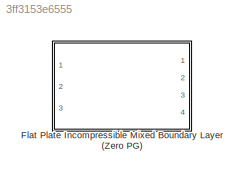
MODEL slx_3ff3153e6555
KIND library
CONFIG AbsTol = auto
CONFIG FixedStep = auto
CONFIG MaxStep = auto
CONFIG MinStep = auto
CONFIG RelTol = 1e-3
CONFIG SampleTimeConstraint = Unconstrained
CONFIG Solver = ode45
CONFIG SolverMode = Auto
CONFIG SolverName = ode45
CONFIG StartTime = 0.0
CONFIG StopTime = 10.0
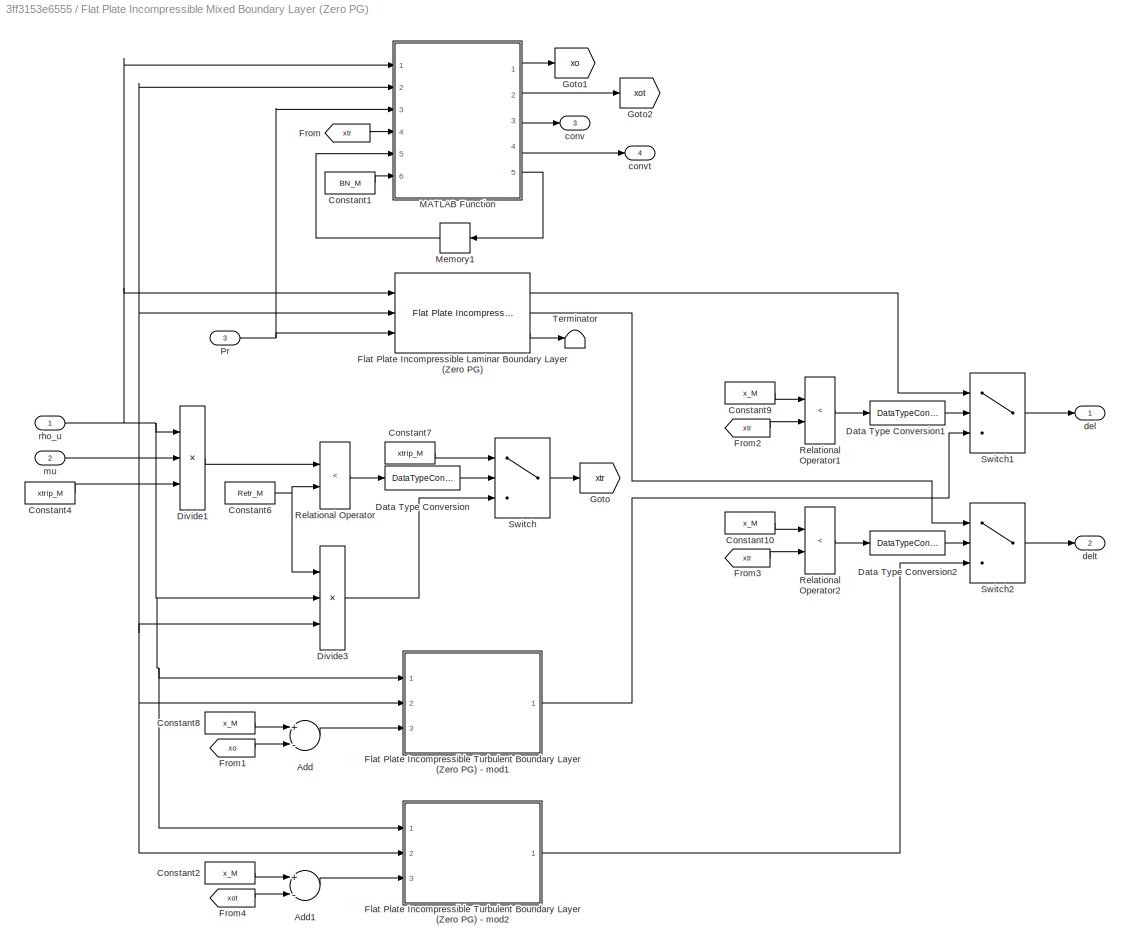
BLOCK [SubSystem] Flat Plate Incompressible Mixed Boundary Layer (Zero PG)
  Ports = [3, 4]
  RequestExecContextInheritance = off
BLOCK [Sum] Flat Plate Incompressible Mixed Boundary Layer (Zero PG)/Add
  InputSameDT = off
  Inputs = +-
  OutDataTypeStr = Inherit: Inherit via internal rule
  Ports = [2, 1]
  SaturateOnIntegerOverflow = off
BLOCK [Sum] Flat Plate Incompressible Mixed Boundary Layer (Zero PG)/Add1
  InputSameDT = off
  Inputs = +-
  OutDataTypeStr = Inherit: Inherit via internal rule
  Ports = [2, 1]
  SaturateOnIntegerOverflow = off
BLOCK [Constant] Flat Plate Incompressible Mixed Boundary Layer (Zero PG)/Constant1
  Value = BN_M
BLOCK [Constant] Flat Plate Incompressible Mixed Boundary Layer (Zero PG)/Constant10
  Value = x_M
BLOCK [Constant] Flat Plate Incompressible Mixed Boundary Layer (Zero PG)/Constant2
  Value = x_M
BLOCK [Constant] Flat Plate Incompressible Mixed Boundary Layer (Zero PG)/Constant4
  Value = xtrip_M
BLOCK [Constant] Flat Plate Incompressible Mixed Boundary Layer (Zero PG)/Constant6
  Value = Retr_M
BLOCK [Constant] Flat Plate Incompressible Mixed Boundary Layer (Zero PG)/Constant7
  Value = xtrip_M
BLOCK [Constant] Flat Plate Incompressible Mixed Boundary Layer (Zero PG)/Constant8
  Value = x_M
BLOCK [Constant] Flat Plate Incompressible Mixed Boundary Layer (Zero PG)/Constant9
  Value = x_M
BLOCK [DataTypeConversion] Flat Plate Incompressible Mixed Boundary Layer (Zero PG)/Data Type Conversion
  OutDataTypeStr = double
  RndMeth = Floor
  SaturateOnIntegerOverflow = off
BLOCK [DataTypeConversion] Flat Plate Incompressible Mixed Boundary Layer (Zero PG)/Data Type Conversion1
  OutDataTypeStr = double
  RndMeth = Floor
  SaturateOnIntegerOverflow = off
BLOCK [DataTypeConversion] Flat Plate Incompressible Mixed Boundary Layer (Zero PG)/Data Type Conversion2
  OutDataTypeStr = double
  RndMeth = Floor
  SaturateOnIntegerOverflow = off
BLOCK [Product] Flat Plate Incompressible Mixed Boundary Layer (Zero PG)/Divide1
  InputSameDT = off
  Inputs = */*
  OutDataTypeStr = Inherit: Inherit via internal rule
  Ports = [3, 1]
  RndMeth = Floor
  SaturateOnIntegerOverflow = off
BLOCK [Product] Flat Plate Incompressible Mixed Boundary Layer (Zero PG)/Divide3
  InputSameDT = off
  Inputs = */*
  OutDataTypeStr = Inherit: Inherit via internal rule
  Ports = [3, 1]
  RndMeth = Floor
  SaturateOnIntegerOverflow = off
BLOCK [Reference] Flat Plate Incompressible Mixed Boundary Layer (Zero PG)/Flat Plate Incompressible Laminar Boundary Layer (Zero PG)  REF=lib_Convection_LamIncompFlatPlateBL/Flat Plate Incompressible 
Laminar Boundary Layer
(Zero PG)
  Ports = [3, 3]
  Retr_M = Retr_M
  SourceBlock = lib_Convection_LamIncompFlatPlateBL/Flat Plate Incompressible \nLaminar Boundary Layer\n(Zero PG)
  SourceType = TSAT: Flat Plate Incompressible Laminar Boundary Layer (Zero PG)
  x_M = x_M
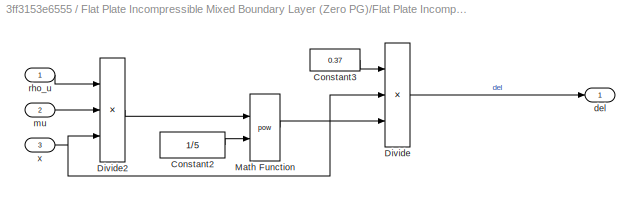
BLOCK [SubSystem] Flat Plate Incompressible Mixed Boundary Layer (Zero PG)/Flat Plate Incompressible Turbulent Boundary Layer (Zero PG) - mod1
  Ports = [3, 1]
  RequestExecContextInheritance = off
BLOCK [Constant] Flat Plate Incompressible Mixed Boundary Layer (Zero PG)/Flat Plate Incompressible Turbulent Boundary Layer (Zero PG) - mod1/Constant2
  Value = 1/5
BLOCK [Constant] Flat Plate Incompressible Mixed Boundary Layer (Zero PG)/Flat Plate Incompressible Turbulent Boundary Layer (Zero PG) - mod1/Constant3
  Value = 0.37
BLOCK [Product] Flat Plate Incompressible Mixed Boundary Layer (Zero PG)/Flat Plate Incompressible Turbulent Boundary Layer (Zero PG) - mod1/Divide
  InputSameDT = off
  Inputs = **/
  OutDataTypeStr = Inherit: Inherit via internal rule
  Ports = [3, 1]
  RndMeth = Floor
  SaturateOnIntegerOverflow = off
BLOCK [Product] Flat Plate Incompressible Mixed Boundary Layer (Zero PG)/Flat Plate Incompressible Turbulent Boundary Layer (Zero PG) - mod1/Divide2
  InputSameDT = off
  Inputs = */*
  OutDataTypeStr = Inherit: Inherit via internal rule
  Ports = [3, 1]
  RndMeth = Floor
  SaturateOnIntegerOverflow = off
BLOCK [Math] Flat Plate Incompressible Mixed Boundary Layer (Zero PG)/Flat Plate Incompressible Turbulent Boundary Layer (Zero PG) - mod1/Math Function
  Operator = pow
  Ports = [2, 1]
BLOCK [Outport] Flat Plate Incompressible Mixed Boundary Layer (Zero PG)/Flat Plate Incompressible Turbulent Boundary Layer (Zero PG) - mod1/del
  IconDisplay = Port number
BLOCK [Inport] Flat Plate Incompressible Mixed Boundary Layer (Zero PG)/Flat Plate Incompressible Turbulent Boundary Layer (Zero PG) - mod1/mu
  IconDisplay = Port number
  Port = 2
BLOCK [Inport] Flat Plate Incompressible Mixed Boundary Layer (Zero PG)/Flat Plate Incompressible Turbulent Boundary Layer (Zero PG) - mod1/rho_u
  IconDisplay = Port number
BLOCK [Inport] Flat Plate Incompressible Mixed Boundary Layer (Zero PG)/Flat Plate Incompressible Turbulent Boundary Layer (Zero PG) - mod1/x
  IconDisplay = Port number
  Port = 3
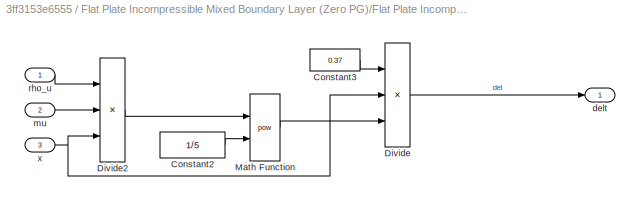
BLOCK [SubSystem] Flat Plate Incompressible Mixed Boundary Layer (Zero PG)/Flat Plate Incompressible Turbulent Boundary Layer (Zero PG) - mod2
  Ports = [3, 1]
  RequestExecContextInheritance = off
BLOCK [Constant] Flat Plate Incompressible Mixed Boundary Layer (Zero PG)/Flat Plate Incompressible Turbulent Boundary Layer (Zero PG) - mod2/Constant2
  Value = 1/5
BLOCK [Constant] Flat Plate Incompressible Mixed Boundary Layer (Zero PG)/Flat Plate Incompressible Turbulent Boundary Layer (Zero PG) - mod2/Constant3
  Value = 0.37
BLOCK [Product] Flat Plate Incompressible Mixed Boundary Layer (Zero PG)/Flat Plate Incompressible Turbulent Boundary Layer (Zero PG) - mod2/Divide
  InputSameDT = off
  Inputs = **/
  OutDataTypeStr = Inherit: Inherit via internal rule
  Ports = [3, 1]
  RndMeth = Floor
  SaturateOnIntegerOverflow = off
BLOCK [Product] Flat Plate Incompressible Mixed Boundary Layer (Zero PG)/Flat Plate Incompressible Turbulent Boundary Layer (Zero PG) - mod2/Divide2
  InputSameDT = off
  Inputs = */*
  OutDataTypeStr = Inherit: Inherit via internal rule
  Ports = [3, 1]
  RndMeth = Floor
  SaturateOnIntegerOverflow = off
BLOCK [Math] Flat Plate Incompressible Mixed Boundary Layer (Zero PG)/Flat Plate Incompressible Turbulent Boundary Layer (Zero PG) - mod2/Math Function
  Operator = pow
  Ports = [2, 1]
BLOCK [Outport] Flat Plate Incompressible Mixed Boundary Layer (Zero PG)/Flat Plate Incompressible Turbulent Boundary Layer (Zero PG) - mod2/delt
  IconDisplay = Port number
BLOCK [Inport] Flat Plate Incompressible Mixed Boundary Layer (Zero PG)/Flat Plate Incompressible Turbulent Boundary Layer (Zero PG) - mod2/mu
  IconDisplay = Port number
  Port = 2
BLOCK [Inport] Flat Plate Incompressible Mixed Boundary Layer (Zero PG)/Flat Plate Incompressible Turbulent Boundary Layer (Zero PG) - mod2/rho_u
  IconDisplay = Port number
BLOCK [Inport] Flat Plate Incompressible Mixed Boundary Layer (Zero PG)/Flat Plate Incompressible Turbulent Boundary Layer (Zero PG) - mod2/x
  IconDisplay = Port number
  Port = 3
BLOCK [From] Flat Plate Incompressible Mixed Boundary Layer (Zero PG)/From
  GotoTag = xtr
BLOCK [From] Flat Plate Incompressible Mixed Boundary Layer (Zero PG)/From1
  GotoTag = xo
BLOCK [From] Flat Plate Incompressible Mixed Boundary Layer (Zero PG)/From2
  GotoTag = xtr
BLOCK [From] Flat Plate Incompressible Mixed Boundary Layer (Zero PG)/From3
  GotoTag = xtr
BLOCK [From] Flat Plate Incompressible Mixed Boundary Layer (Zero PG)/From4
  GotoTag = xot
BLOCK [Goto] Flat Plate Incompressible Mixed Boundary Layer (Zero PG)/Goto
  GotoTag = xtr
BLOCK [Goto] Flat Plate Incompressible Mixed Boundary Layer (Zero PG)/Goto1
  GotoTag = xo
BLOCK [Goto] Flat Plate Incompressible Mixed Boundary Layer (Zero PG)/Goto2
  GotoTag = xot
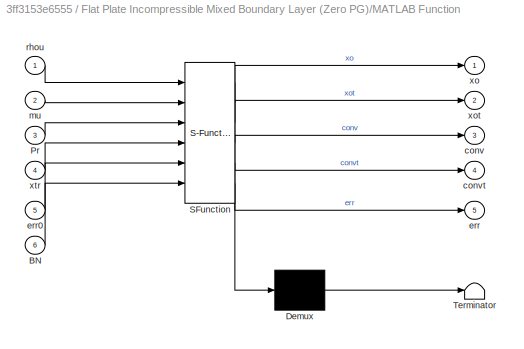
BLOCK [SubSystem] Flat Plate Incompressible Mixed Boundary Layer (Zero PG)/MATLAB Function
  ErrorFcn = Stateflow.Translate.translate
  PermitHierarchicalResolution = ExplicitOnly
  Ports = [6, 5]
  RequestExecContextInheritance = off
  SFBlockType = MATLAB Function
  TreatAsAtomicUnit = on
BLOCK [Demux] Flat Plate Incompressible Mixed Boundary Layer (Zero PG)/MATLAB Function/ Demux 
  Outputs = 1
  Ports = [1, 1]
BLOCK [S-Function] Flat Plate Incompressible Mixed Boundary Layer (Zero PG)/MATLAB Function/ SFunction 
  EnableBusSupport = on
  FunctionName = sf_sfun
  PortCounts = [6 6]
  Ports = [6, 6]
  Tag = Stateflow S-Function lib_Convection_MixedIncompFlatPlateBL 2
BLOCK [Terminator] Flat Plate Incompressible Mixed Boundary Layer (Zero PG)/MATLAB Function/ Terminator 
BLOCK [Inport] Flat Plate Incompressible Mixed Boundary Layer (Zero PG)/MATLAB Function/BN
  IconDisplay = Port number
  Port = 6
BLOCK [Inport] Flat Plate Incompressible Mixed Boundary Layer (Zero PG)/MATLAB Function/Pr
  IconDisplay = Port number
  Port = 3
BLOCK [Outport] Flat Plate Incompressible Mixed Boundary Layer (Zero PG)/MATLAB Function/conv
  IconDisplay = Port number
  Port = 3
BLOCK [Outport] Flat Plate Incompressible Mixed Boundary Layer (Zero PG)/MATLAB Function/convt
  IconDisplay = Port number
  Port = 4
BLOCK [Outport] Flat Plate Incompressible Mixed Boundary Layer (Zero PG)/MATLAB Function/err
  IconDisplay = Port number
  Port = 5
BLOCK [Inport] Flat Plate Incompressible Mixed Boundary Layer (Zero PG)/MATLAB Function/err0
  IconDisplay = Port number
  Port = 5
BLOCK [Inport] Flat Plate Incompressible Mixed Boundary Layer (Zero PG)/MATLAB Function/mu
  IconDisplay = Port number
  Port = 2
BLOCK [Inport] Flat Plate Incompressible Mixed Boundary Layer (Zero PG)/MATLAB Function/rhou
  IconDisplay = Port number
BLOCK [Outport] Flat Plate Incompressible Mixed Boundary Layer (Zero PG)/MATLAB Function/xo
  IconDisplay = Port number
BLOCK [Outport] Flat Plate Incompressible Mixed Boundary Layer (Zero PG)/MATLAB Function/xot
  IconDisplay = Port number
  Port = 2
BLOCK [Inport] Flat Plate Incompressible Mixed Boundary Layer (Zero PG)/MATLAB Function/xtr
  IconDisplay = Port number
  Port = 4
BLOCK [Memory] Flat Plate Incompressible Mixed Boundary Layer (Zero PG)/Memory1
  X0 = zeros(1,9)
BLOCK [Inport] Flat Plate Incompressible Mixed Boundary Layer (Zero PG)/Pr
  IconDisplay = Port number
  Port = 3
BLOCK [RelationalOperator] Flat Plate Incompressible Mixed Boundary Layer (Zero PG)/Relational Operator
  InputSameDT = off
  Operator = <
  OutDataTypeStr = boolean
  Ports = [2, 1]
BLOCK [RelationalOperator] Flat Plate Incompressible Mixed Boundary Layer (Zero PG)/Relational Operator1
  InputSameDT = off
  Operator = <
  OutDataTypeStr = boolean
  Ports = [2, 1]
BLOCK [RelationalOperator] Flat Plate Incompressible Mixed Boundary Layer (Zero PG)/Relational Operator2
  InputSameDT = off
  Operator = <
  OutDataTypeStr = boolean
  Ports = [2, 1]
BLOCK [Switch] Flat Plate Incompressible Mixed Boundary Layer (Zero PG)/Switch
  Criteria = u2 > Threshold
  InputSameDT = off
  SaturateOnIntegerOverflow = off
BLOCK [Switch] Flat Plate Incompressible Mixed Boundary Layer (Zero PG)/Switch1
  Criteria = u2 > Threshold
  InputSameDT = off
  SaturateOnIntegerOverflow = off
BLOCK [Switch] Flat Plate Incompressible Mixed Boundary Layer (Zero PG)/Switch2
  Criteria = u2 > Threshold
  InputSameDT = off
  SaturateOnIntegerOverflow = off
BLOCK [Terminator] Flat Plate Incompressible Mixed Boundary Layer (Zero PG)/Terminator
BLOCK [Outport] Flat Plate Incompressible Mixed Boundary Layer (Zero PG)/conv
  IconDisplay = Port number
  Port = 3
BLOCK [Outport] Flat Plate Incompressible Mixed Boundary Layer (Zero PG)/convt
  IconDisplay = Port number
  Port = 4
BLOCK [Outport] Flat Plate Incompressible Mixed Boundary Layer (Zero PG)/del
  IconDisplay = Port number
BLOCK [Outport] Flat Plate Incompressible Mixed Boundary Layer (Zero PG)/delt
  IconDisplay = Port number
  Port = 2
BLOCK [Inport] Flat Plate Incompressible Mixed Boundary Layer (Zero PG)/mu
  IconDisplay = Port number
  Port = 2
BLOCK [Inport] Flat Plate Incompressible Mixed Boundary Layer (Zero PG)/rho_u
  IconDisplay = Port number
LINE Flat Plate Incompressible Mixed Boundary Layer (Zero PG)/Add1:1 -> Flat Plate Incompressible Mixed Boundary Layer (Zero PG)/Flat Plate Incompressible Turbulent Boundary Layer (Zero PG) - mod2:3
LINE Flat Plate Incompressible Mixed Boundary Layer (Zero PG)/Add:1 -> Flat Plate Incompressible Mixed Boundary Layer (Zero PG)/Flat Plate Incompressible Turbulent Boundary Layer (Zero PG) - mod1:3
LINE Flat Plate Incompressible Mixed Boundary Layer (Zero PG)/Constant10:1 -> Flat Plate Incompressible Mixed Boundary Layer (Zero PG)/Relational Operator2:1
LINE Flat Plate Incompressible Mixed Boundary Layer (Zero PG)/Constant1:1 -> Flat Plate Incompressible Mixed Boundary Layer (Zero PG)/MATLAB Function:6
LINE Flat Plate Incompressible Mixed Boundary Layer (Zero PG)/Constant2:1 -> Flat Plate Incompressible Mixed Boundary Layer (Zero PG)/Add1:1
LINE Flat Plate Incompressible Mixed Boundary Layer (Zero PG)/Constant4:1 -> Flat Plate Incompressible Mixed Boundary Layer (Zero PG)/Divide1:3
NET Flat Plate Incompressible Mixed Boundary Layer (Zero PG)/Constant6:1 -> Flat Plate Incompressible Mixed Boundary Layer (Zero PG)/Divide3:1, Flat Plate Incompressible Mixed Boundary Layer (Zero PG)/Relational Operator:2
LINE Flat Plate Incompressible Mixed Boundary Layer (Zero PG)/Constant7:1 -> Flat Plate Incompressible Mixed Boundary Layer (Zero PG)/Switch:1
LINE Flat Plate Incompressible Mixed Boundary Layer (Zero PG)/Constant8:1 -> Flat Plate Incompressible Mixed Boundary Layer (Zero PG)/Add:1
LINE Flat Plate Incompressible Mixed Boundary Layer (Zero PG)/Constant9:1 -> Flat Plate Incompressible Mixed Boundary Layer (Zero PG)/Relational Operator1:1
LINE Flat Plate Incompressible Mixed Boundary Layer (Zero PG)/Data Type Conversion1:1 -> Flat Plate Incompressible Mixed Boundary Layer (Zero PG)/Switch1:2
LINE Flat Plate Incompressible Mixed Boundary Layer (Zero PG)/Data Type Conversion2:1 -> Flat Plate Incompressible Mixed Boundary Layer (Zero PG)/Switch2:2
LINE Flat Plate Incompressible Mixed Boundary Layer (Zero PG)/Data Type Conversion:1 -> Flat Plate Incompressible Mixed Boundary Layer (Zero PG)/Switch:2
LINE Flat Plate Incompressible Mixed Boundary Layer (Zero PG)/Divide1:1 -> Flat Plate Incompressible Mixed Boundary Layer (Zero PG)/Relational Operator:1
LINE Flat Plate Incompressible Mixed Boundary Layer (Zero PG)/Divide3:1 -> Flat Plate Incompressible Mixed Boundary Layer (Zero PG)/Switch:3
LINE Flat Plate Incompressible Mixed Boundary Layer (Zero PG)/Flat Plate Incompressible Laminar Boundary Layer (Zero PG):1 -> Flat Plate Incompressible Mixed Boundary Layer (Zero PG)/Switch1:1
LINE Flat Plate Incompressible Mixed Boundary Layer (Zero PG)/Flat Plate Incompressible Laminar Boundary Layer (Zero PG):2 -> Flat Plate Incompressible Mixed Boundary Layer (Zero PG)/Switch2:1
LINE Flat Plate Incompressible Mixed Boundary Layer (Zero PG)/Flat Plate Incompressible Laminar Boundary Layer (Zero PG):3 -> Flat Plate Incompressible Mixed Boundary Layer (Zero PG)/Terminator:1
LINE Flat Plate Incompressible Mixed Boundary Layer (Zero PG)/Flat Plate Incompressible Turbulent Boundary Layer (Zero PG) - mod1/Constant2:1 -> Flat Plate Incompressible Mixed Boundary Layer (Zero PG)/Flat Plate Incompressible Turbulent Boundary Layer (Zero PG) - mod1/Math Function:2
LINE Flat Plate Incompressible Mixed Boundary Layer (Zero PG)/Flat Plate Incompressible Turbulent Boundary Layer (Zero PG) - mod1/Constant3:1 -> Flat Plate Incompressible Mixed Boundary Layer (Zero PG)/Flat Plate Incompressible Turbulent Boundary Layer (Zero PG) - mod1/Divide:1
LINE Flat Plate Incompressible Mixed Boundary Layer (Zero PG)/Flat Plate Incompressible Turbulent Boundary Layer (Zero PG) - mod1/Divide2:1 -> Flat Plate Incompressible Mixed Boundary Layer (Zero PG)/Flat Plate Incompressible Turbulent Boundary Layer (Zero PG) - mod1/Math Function:1
LINE Flat Plate Incompressible Mixed Boundary Layer (Zero PG)/Flat Plate Incompressible Turbulent Boundary Layer (Zero PG) - mod1/Divide:1 -> Flat Plate Incompressible Mixed Boundary Layer (Zero PG)/Flat Plate Incompressible Turbulent Boundary Layer (Zero PG) - mod1/del:1
LINE Flat Plate Incompressible Mixed Boundary Layer (Zero PG)/Flat Plate Incompressible Turbulent Boundary Layer (Zero PG) - mod1/Math Function:1 -> Flat Plate Incompressible Mixed Boundary Layer (Zero PG)/Flat Plate Incompressible Turbulent Boundary Layer (Zero PG) - mod1/Divide:3
LINE Flat Plate Incompressible Mixed Boundary Layer (Zero PG)/Flat Plate Incompressible Turbulent Boundary Layer (Zero PG) - mod1/mu:1 -> Flat Plate Incompressible Mixed Boundary Layer (Zero PG)/Flat Plate Incompressible Turbulent Boundary Layer (Zero PG) - mod1/Divide2:2
LINE Flat Plate Incompressible Mixed Boundary Layer (Zero PG)/Flat Plate Incompressible Turbulent Boundary Layer (Zero PG) - mod1/rho_u:1 -> Flat Plate Incompressible Mixed Boundary Layer (Zero PG)/Flat Plate Incompressible Turbulent Boundary Layer (Zero PG) - mod1/Divide2:1
NET Flat Plate Incompressible Mixed Boundary Layer (Zero PG)/Flat Plate Incompressible Turbulent Boundary Layer (Zero PG) - mod1/x:1 -> Flat Plate Incompressible Mixed Boundary Layer (Zero PG)/Flat Plate Incompressible Turbulent Boundary Layer (Zero PG) - mod1/Divide2:3, Flat Plate Incompressible Mixed Boundary Layer (Zero PG)/Flat Plate Incompressible Turbulent Boundary Layer (Zero PG) - mod1/Divide:2
LINE Flat Plate Incompressible Mixed Boundary Layer (Zero PG)/Flat Plate Incompressible Turbulent Boundary Layer (Zero PG) - mod1:1 -> Flat Plate Incompressible Mixed Boundary Layer (Zero PG)/Switch1:3
LINE Flat Plate Incompressible Mixed Boundary Layer (Zero PG)/Flat Plate Incompressible Turbulent Boundary Layer (Zero PG) - mod2/Constant2:1 -> Flat Plate Incompressible Mixed Boundary Layer (Zero PG)/Flat Plate Incompressible Turbulent Boundary Layer (Zero PG) - mod2/Math Function:2
LINE Flat Plate Incompressible Mixed Boundary Layer (Zero PG)/Flat Plate Incompressible Turbulent Boundary Layer (Zero PG) - mod2/Constant3:1 -> Flat Plate Incompressible Mixed Boundary Layer (Zero PG)/Flat Plate Incompressible Turbulent Boundary Layer (Zero PG) - mod2/Divide:1
LINE Flat Plate Incompressible Mixed Boundary Layer (Zero PG)/Flat Plate Incompressible Turbulent Boundary Layer (Zero PG) - mod2/Divide2:1 -> Flat Plate Incompressible Mixed Boundary Layer (Zero PG)/Flat Plate Incompressible Turbulent Boundary Layer (Zero PG) - mod2/Math Function:1
LINE Flat Plate Incompressible Mixed Boundary Layer (Zero PG)/Flat Plate Incompressible Turbulent Boundary Layer (Zero PG) - mod2/Divide:1 -> Flat Plate Incompressible Mixed Boundary Layer (Zero PG)/Flat Plate Incompressible Turbulent Boundary Layer (Zero PG) - mod2/delt:1
LINE Flat Plate Incompressible Mixed Boundary Layer (Zero PG)/Flat Plate Incompressible Turbulent Boundary Layer (Zero PG) - mod2/Math Function:1 -> Flat Plate Incompressible Mixed Boundary Layer (Zero PG)/Flat Plate Incompressible Turbulent Boundary Layer (Zero PG) - mod2/Divide:3
LINE Flat Plate Incompressible Mixed Boundary Layer (Zero PG)/Flat Plate Incompressible Turbulent Boundary Layer (Zero PG) - mod2/mu:1 -> Flat Plate Incompressible Mixed Boundary Layer (Zero PG)/Flat Plate Incompressible Turbulent Boundary Layer (Zero PG) - mod2/Divide2:2
LINE Flat Plate Incompressible Mixed Boundary Layer (Zero PG)/Flat Plate Incompressible Turbulent Boundary Layer (Zero PG) - mod2/rho_u:1 -> Flat Plate Incompressible Mixed Boundary Layer (Zero PG)/Flat Plate Incompressible Turbulent Boundary Layer (Zero PG) - mod2/Divide2:1
NET Flat Plate Incompressible Mixed Boundary Layer (Zero PG)/Flat Plate Incompressible Turbulent Boundary Layer (Zero PG) - mod2/x:1 -> Flat Plate Incompressible Mixed Boundary Layer (Zero PG)/Flat Plate Incompressible Turbulent Boundary Layer (Zero PG) - mod2/Divide2:3, Flat Plate Incompressible Mixed Boundary Layer (Zero PG)/Flat Plate Incompressible Turbulent Boundary Layer (Zero PG) - mod2/Divide:2
LINE Flat Plate Incompressible Mixed Boundary Layer (Zero PG)/Flat Plate Incompressible Turbulent Boundary Layer (Zero PG) - mod2:1 -> Flat Plate Incompressible Mixed Boundary Layer (Zero PG)/Switch2:3
LINE Flat Plate Incompressible Mixed Boundary Layer (Zero PG)/From1:1 -> Flat Plate Incompressible Mixed Boundary Layer (Zero PG)/Add:2
LINE Flat Plate Incompressible Mixed Boundary Layer (Zero PG)/From2:1 -> Flat Plate Incompressible Mixed Boundary Layer (Zero PG)/Relational Operator1:2
LINE Flat Plate Incompressible Mixed Boundary Layer (Zero PG)/From3:1 -> Flat Plate Incompressible Mixed Boundary Layer (Zero PG)/Relational Operator2:2
LINE Flat Plate Incompressible Mixed Boundary Layer (Zero PG)/From4:1 -> Flat Plate Incompressible Mixed Boundary Layer (Zero PG)/Add1:2
LINE Flat Plate Incompressible Mixed Boundary Layer (Zero PG)/From:1 -> Flat Plate Incompressible Mixed Boundary Layer (Zero PG)/MATLAB Function:4
LINE Flat Plate Incompressible Mixed Boundary Layer (Zero PG)/MATLAB Function:1 -> Flat Plate Incompressible Mixed Boundary Layer (Zero PG)/Goto1:1
LINE Flat Plate Incompressible Mixed Boundary Layer (Zero PG)/MATLAB Function:2 -> Flat Plate Incompressible Mixed Boundary Layer (Zero PG)/Goto2:1
LINE Flat Plate Incompressible Mixed Boundary Layer (Zero PG)/MATLAB Function:3 -> Flat Plate Incompressible Mixed Boundary Layer (Zero PG)/conv:1
LINE Flat Plate Incompressible Mixed Boundary Layer (Zero PG)/MATLAB Function:4 -> Flat Plate Incompressible Mixed Boundary Layer (Zero PG)/convt:1
LINE Flat Plate Incompressible Mixed Boundary Layer (Zero PG)/MATLAB Function:5 -> Flat Plate Incompressible Mixed Boundary Layer (Zero PG)/Memory1:1
LINE Flat Plate Incompressible Mixed Boundary Layer (Zero PG)/Memory1:1 -> Flat Plate Incompressible Mixed Boundary Layer (Zero PG)/MATLAB Function:5
NET Flat Plate Incompressible Mixed Boundary Layer (Zero PG)/Pr:1 -> Flat Plate Incompressible Mixed Boundary Layer (Zero PG)/Flat Plate Incompressible Laminar Boundary Layer (Zero PG):3, Flat Plate Incompressible Mixed Boundary Layer (Zero PG)/MATLAB Function:3
LINE Flat Plate Incompressible Mixed Boundary Layer (Zero PG)/Relational Operator1:1 -> Flat Plate Incompressible Mixed Boundary Layer (Zero PG)/Data Type Conversion1:1
LINE Flat Plate Incompressible Mixed Boundary Layer (Zero PG)/Relational Operator2:1 -> Flat Plate Incompressible Mixed Boundary Layer (Zero PG)/Data Type Conversion2:1
LINE Flat Plate Incompressible Mixed Boundary Layer (Zero PG)/Relational Operator:1 -> Flat Plate Incompressible Mixed Boundary Layer (Zero PG)/Data Type Conversion:1
LINE Flat Plate Incompressible Mixed Boundary Layer (Zero PG)/Switch1:1 -> Flat Plate Incompressible Mixed Boundary Layer (Zero PG)/del:1
LINE Flat Plate Incompressible Mixed Boundary Layer (Zero PG)/Switch2:1 -> Flat Plate Incompressible Mixed Boundary Layer (Zero PG)/delt:1
LINE Flat Plate Incompressible Mixed Boundary Layer (Zero PG)/Switch:1 -> Flat Plate Incompressible Mixed Boundary Layer (Zero PG)/Goto:1
NET Flat Plate Incompressible Mixed Boundary Layer (Zero PG)/mu:1 -> Flat Plate Incompressible Mixed Boundary Layer (Zero PG)/Divide1:2, Flat Plate Incompressible Mixed Boundary Layer (Zero PG)/Divide3:3, Flat Plate Incompressible Mixed Boundary Layer (Zero PG)/Flat Plate Incompressible Laminar Boundary Layer (Zero PG):2, Flat Plate Incompressible Mixed Boundary Layer (Zero PG)/Flat Plate Incompressible Turbulent Boundary Layer (Zero PG) - mod1:2, Flat Plate Incompressible Mixed Boundary Layer (Zero PG)/Flat Plate Incompressible Turbulent Boundary Layer (Zero PG) - mod2:2, Flat Plate Incompressible Mixed Boundary Layer (Zero PG)/MATLAB Function:2
NET Flat Plate Incompressible Mixed Boundary Layer (Zero PG)/rho_u:1 -> Flat Plate Incompressible Mixed Boundary Layer (Zero PG)/Divide1:1, Flat Plate Incompressible Mixed Boundary Layer (Zero PG)/Divide3:2, Flat Plate Incompressible Mixed Boundary Layer (Zero PG)/Flat Plate Incompressible Laminar Boundary Layer (Zero PG):1, Flat Plate Incompressible Mixed Boundary Layer (Zero PG)/Flat Plate Incompressible Turbulent Boundary Layer (Zero PG) - mod1:1, Flat Plate Incompressible Mixed Boundary Layer (Zero PG)/Flat Plate Incompressible Turbulent Boundary Layer (Zero PG) - mod2:1, Flat Plate Incompressible Mixed Boundary Layer (Zero PG)/MATLAB Function:1
note: NET lines group one-source signal fan-out (src -> all destinations, sorted); 1:1 wires keep LINE
CHART Flat Plate Incompressible 
Mixed Boundary Layer
(Zero PG)/MATLAB Function states=1 transitions=1
  STATE_LABEL 'eML_blk_kernel()'
  STATE_LABEL "SCRIPT:\nfunction [xo,xot,conv,convt,err] = TransitionXo(rhou,mu,Pr,xtr,err0,BN)\n%#codegen\n\n%Warning/Error Check\nerr = err0;\nerrNum = 1;\n%rhou is a scalar?\nif max(size(rhou)) ~= 1 && err0(errNum) ~= 1\n    fprintf('warning in %s: rho_u must be a scalar\\n',char(BN));\n    err(errNum) = 1;\nend\nerrNum = errNum + 1;\n%mu is a scalar?\nif min(size(mu)) ~= 1 && err0(errNum) ~= 1\n    fprintf('warning in %s: m...<+3333ch>"
